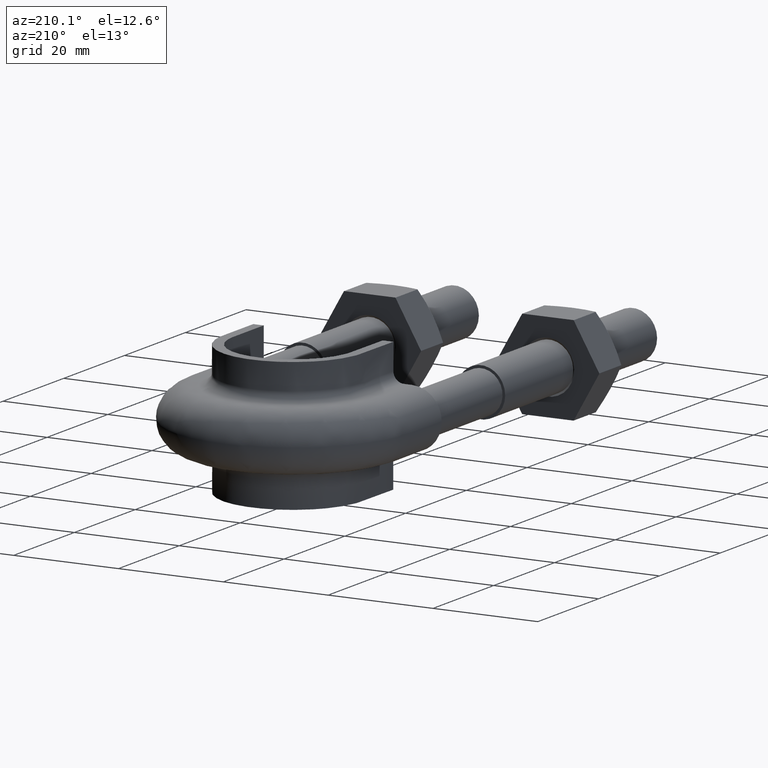
[diagram: clean part render]
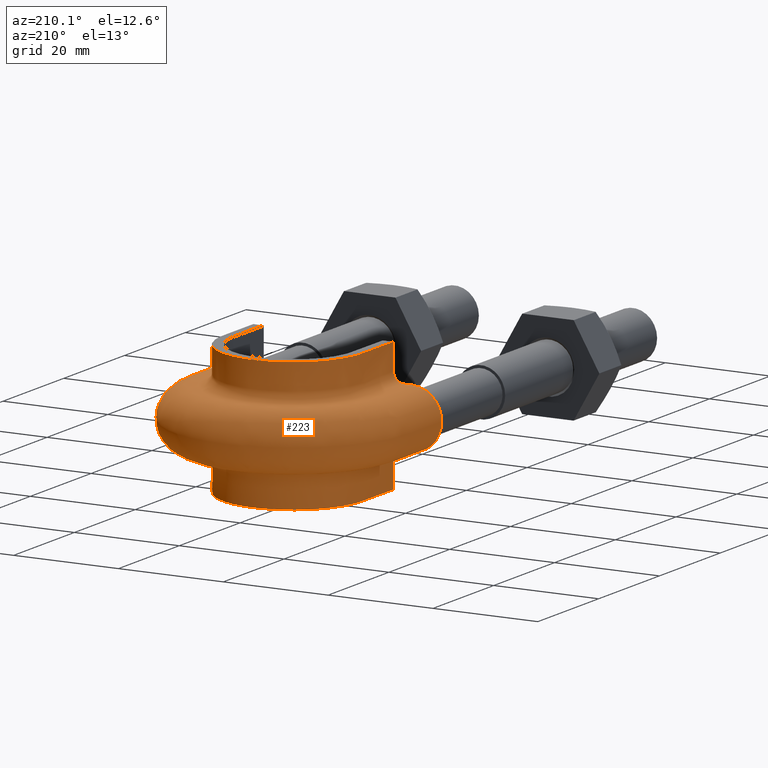
[diagram: same view with one face highlighted and labeled with its STEP entity id]
A machine part, auxiliary view. The second image highlights one B-rep face of the part: STEP entity #223.
In plain terms, the highlighted face is a freeform B-spline surface patch.
Its self-contained STEP definition (entity closure, byte-faithful):
#223 = ADVANCED_FACE( '', ( #306 ), #307, .F. );
#306 = FACE_OUTER_BOUND( '', #479, .T. );
#307 = B_SPLINE_SURFACE_WITH_KNOTS( '', 3, 3, ( ( #480, #481, #482, #483, #484, #485, #486, #487, #488, #489, #490, #491, #492, #493, #494, #495, #496, #497, #498 ), ( #499, #500, #501, #502, #503, #504, #505, #506, #507, #508, #509, #510, #511, #512, #513, #514, #515, #516, #517 ), ( #518, #519, #520, #521, #522, #523, #524, #525, #526, #527, #528, #529, #530, #531, #532, #533, #534, #535, #536 ), ( #537, #538, #539, #540, #541, #542, #543, #544, #545, #546, #547, #548, #549, #550, #551, #552, #553, #554, #555 ), ( #556, #557, #558, #559, #560, #561, #562, #563, #564, #565, #566, #567, #568, #569, #570, #571, #572, #573, #574 ), ( #575, #576, #577, #578, #579, #580, #581, #582, #583, #584, #585, #586, #587, #588, #589, #590, #591, #592, #593 ), ( #594, #595, #596, #597, #598, #599, #600, #601, #602, #603, #604, #605, #606, #607, #608, #609, #610, #611, #612 ), ( #613, #614, #615, #616, #617, #618, #619, #620, #621, #622, #623, #624, #625, #626, #627, #628, #629, #630, #631 ), ( #632, #633, #634, #635, #636, #637, #638, #639, #640, #641, #642, #643, #644, #645, #646, #647, #648, #649, #650 ), ( #651, #652, #653, #654, #655, #656, #657, #658, #659, #660, #661, #662, #663, #664, #665, #666, #667, #668, #669 ), ( #670, #671, #672, #673, #674, #675, #676, #677, #678, #679, #680, #681, #682, #683, #684, #685, #686, #687, #688 ), ( #689, #690, #691, #692, #693, #694, #695, #696, #697, #698, #699, #700, #701, #702, #703, #704, #705, #706, #707 ), ( #708, #709, #710, #711, #712, #713, #714, #715, #716, #717, #718, #719, #720, #721, #722, #723, #724, #725, #726 ), ( #727, #728, #729, #730, #731, #732, #733, #734, #735, #736, #737, #738, #739, #740, #741, #742, #743, #744, #745 ), ( #746, #747, #748, #749, #750, #751, #752, #753, #754, #755, #756, #757, #758, #759, #760, #761, #762, #763, #764 ), ( #765, #766, #767, #768, #769, #770, #771, #772, #773, #774, #775, #776, #777, #778, #779, #780, #781, #782, #783 ), ( #784, #785, #786, #787, #788, #789, #790, #791, #792, #793, #794, #795, #796, #797, #798, #799, #800, #801, #802 ), ( #803, #804, #805, #806, #807, #808, #809, #810, #811, #812, #813, #814, #815, #816, #817, #818, #819, #820, #821 ), ( #822, #823, #824, #825, #826, #827, #828, #829, #830, #831, #832, #833, #834, #835, #836, #837, #838, #839, #840 ), ( #841, #842, #843, #844, #845, #846, #847, #848, #849, #850, #851, #852, #853, #854, #855, #856, #857, #858, #859 ), ( #860, #861, #862, #863, #864, #865, #866, #867, #868, #869, #870, #871, #872, #873, #874, #875, #876, #877, #878 ), ( #879, #880, #881, #882, #883, #884, #885, #886, #887, #888, #889, #890, #891, #892, #893, #894, #895, #896, #897 ), ( #898, #899, #900, #901, #902, #903, #904, #905, #906, #907, #908, #909, #910, #911, #912, #913, #914, #915, #916 ), ( #917, #918, #919, #920, #921, #922, #923, #924, #925, #926, #927, #928, #929, #930, #931, #932, #933, #934, #935 ), ( #936, #937, #938, #939, #940, #941, #942, #943, #944, #945, #946, #947, #948, #949, #950, #951, #952, #953, #954 ), ( #955, #956, #957, #958, #959, #960, #961, #962, #963, #964, #965, #966, #967, #968, #969, #970, #971, #972, #973 ), ( #974, #975, #976, #977, #978, #979, #980, #981, #982, #983, #984, #985, #986, #987, #988, #989, #990, #991, #992 ), ( #993, #994, #995, #996, #997, #998, #999, #1000, #1001, #1002, #1003, #1004, #1005, #1006, #1007, #1008, #1009, #1010, #1011 ), ( #1012, #1013, #1014, #1015, #1016, #1017, #1018, #1019, #1020, #1021, #1022, #1023, #1024, #1025, #1026, #1027, #1028, #1029, #1030 ), ( #1031, #1032, #1033, #1034, #1035, #1036, #1037, #1038, #1039, #1040, #1041, #1042, #1043, #1044, #1045, #1046, #1047, #1048, #1049 ), ( #1050, #1051, #1052, #1053, #1054, #1055, #1056, #1057, #1058, #1059, #1060, #1061, #1062, #1063, #1064, #1065, #1066, #1067, #1068 ) ), .UNSPECIFIED., .F., .F., .F., ( 4, 3, 1, 1, 1, 3, 3, 1, 1, 1, 3, 3, 1, 1, 1, 3, 4 ), ( 4, 3, 1, 1, 1, 3, 1, 1, 1, 3, 4 ), ( 0.736842105263158, 0.789473684210526, 0.842105263157895, 0.894736842105263, 0.947368421052632, 1.00000000000000, 1.05263157894737, 1.10526315789474, 1.15789473684211, 1.21052631578947, 1.26315789473684, 1.31578947368421, 1.36842105263158, 1.42105263157895, 1.47368421052632, 1.52631578947368, 1.57894736842105 ), ( 0.000000000000000, 1.00000000000000, 1.50000000000000, 2.00000000000000, 3.00000000000000, 3.50000000000000, 4.00000000000000, 5.00000000000000, 5.50000000000000, 6.00000000000000, 7.00000000000000 ), .UNSPECIFIED. );
#479 = EDGE_LOOP( '', ( #1594, #1595, #1596, #1597 ) );
#480 = CARTESIAN_POINT( '', ( -13.3600000000000, 69.5400000000000, 12.5000000000000 ) );
#481 = CARTESIAN_POINT( '', ( -13.3600000000000, 73.9066666666667, 12.5000000000000 ) );
#482 = CARTESIAN_POINT( '', ( -13.3600000000000, 78.2733333333333, 12.5000000000000 ) );
#483 = CARTESIAN_POINT( '', ( -13.3600000000000, 82.6400000000000, 12.5000000000000 ) );
#484 = CARTESIAN_POINT( '', ( -13.3600000000000, 84.0243844002116, 12.5000000000000 ) );
#485 = CARTESIAN_POINT( '', ( -12.9030271653615, 86.8385025897862, 12.5000000000000 ) );
#486 = CARTESIAN_POINT( '', ( -10.3559347208131, 91.8876580329545, 12.5000000000000 ) );
#487 = CARTESIAN_POINT( '', ( -5.59795283105406, 95.3461150577033, 12.5000000000000 ) );
#488 = CARTESIAN_POINT( '', ( -1.39948820776350, 95.9945757498437, 12.5000000000000 ) );
#489 = CARTESIAN_POINT( '', ( 1.78270889054930E-014, 95.9945757498437, 12.5000000000000 ) );
#490 = CARTESIAN_POINT( '', ( 1.39948820776354, 95.9945757498437, 12.5000000000000 ) );
#491 = CARTESIAN_POINT( '', ( 5.59795283105410, 95.3461150577033, 12.5000000000000 ) );
#492 = CARTESIAN_POINT( '', ( 10.3559347208131, 91.8876580329545, 12.5000000000000 ) );
#493 = CARTESIAN_POINT( '', ( 12.9030271653616, 86.8385025897862, 12.5000000000000 ) );
#494 = CARTESIAN_POINT( '', ( 13.3600000000000, 84.0243844002116, 12.5000000000000 ) );
#495 = CARTESIAN_POINT( '', ( 13.3600000000000, 82.6400000000000, 12.5000000000000 ) );
#496 = CARTESIAN_POINT( '', ( 13.3600000000000, 78.2733333333333, 12.5000000000000 ) );
#497 = CARTESIAN_POINT( '', ( 13.3600000000000, 73.9066666666667, 12.5000000000000 ) );
#498 = CARTESIAN_POINT( '', ( 13.3600000000000, 69.5400000000000, 12.5000000000000 ) );
#499 = CARTESIAN_POINT( '', ( -13.3600000000000, 69.5399999999999, 10.8666666666666 ) );
#500 = CARTESIAN_POINT( '', ( -13.3600000000000, 73.9066666666666, 10.8666666666666 ) );
#501 = CARTESIAN_POINT( '', ( -13.3600000000000, 78.2733333333333, 10.8666666666666 ) );
#502 = CARTESIAN_POINT( '', ( -13.3600000000000, 82.6399999999999, 10.8666666666666 ) );
#503 = CARTESIAN_POINT( '', ( -13.3600000000000, 84.0243844002115, 10.8666666666666 ) );
#504 = CARTESIAN_POINT( '', ( -12.9030271653615, 86.8385025897861, 10.8666666666666 ) );
#505 = CARTESIAN_POINT( '', ( -10.3559347208130, 91.8876580329544, 10.8666666666666 ) );
#506 = CARTESIAN_POINT( '', ( -5.59795283105404, 95.3461150577032, 10.8666666666666 ) );
#507 = CARTESIAN_POINT( '', ( -1.39948820776349, 95.9945757498435, 10.8666666666666 ) );
#508 = CARTESIAN_POINT( '', ( 2.12965358574466E-014, 95.9945757498435, 10.8666666666666 ) );
#509 = CARTESIAN_POINT( '', ( 1.39948820776354, 95.9945757498435, 10.8666666666666 ) );
#510 = CARTESIAN_POINT( '', ( 5.59795283105408, 95.3461150577031, 10.8666666666666 ) );
#511 = CARTESIAN_POINT( '', ( 10.3559347208130, 91.8876580329544, 10.8666666666666 ) );
#512 = CARTESIAN_POINT( '', ( 12.9030271653615, 86.8385025897861, 10.8666666666666 ) );
#513 = CARTESIAN_POINT( '', ( 13.3600000000000, 84.0243844002115, 10.8666666666666 ) );
#514 = CARTESIAN_POINT( '', ( 13.3600000000000, 82.6399999999999, 10.8666666666666 ) );
#515 = CARTESIAN_POINT( '', ( 13.3600000000000, 78.2733333333333, 10.8666666666666 ) );
#516 = CARTESIAN_POINT( '', ( 13.3600000000000, 73.9066666666666, 10.8666666666666 ) );
#517 = CARTESIAN_POINT( '', ( 13.3600000000000, 69.5399999999999, 10.8666666666666 ) );
#518 = CARTESIAN_POINT( '', ( -13.3600000000001, 69.5400000000002, 9.23333333333334 ) );
#519 = CARTESIAN_POINT( '', ( -13.3600000000001, 73.9066666666668, 9.23333333333334 ) );
#520 = CARTESIAN_POINT( '', ( -13.3600000000001, 78.2733333333336, 9.23333333333334 ) );
#521 = CARTESIAN_POINT( '', ( -13.3600000000001, 82.6400000000002, 9.23333333333334 ) );
#522 = CARTESIAN_POINT( '', ( -13.3600000000001, 84.0243844002118, 9.23333333333334 ) );
#523 = CARTESIAN_POINT( '', ( -12.9030271653616, 86.8385025897865, 9.23333333333335 ) );
#524 = CARTESIAN_POINT( '', ( -10.3559347208131, 91.8876580329547, 9.23333333333335 ) );
#525 = CARTESIAN_POINT( '', ( -5.59795283105408, 95.3461150577035, 9.23333333333334 ) );
#526 = CARTESIAN_POINT( '', ( -1.39948820776350, 95.9945757498439, 9.23333333333334 ) );
#527 = CARTESIAN_POINT( '', ( 2.10796954229496E-014, 95.9945757498440, 9.23333333333334 ) );
#528 = CARTESIAN_POINT( '', ( 1.39948820776355, 95.9945757498439, 9.23333333333334 ) );
#529 = CARTESIAN_POINT( '', ( 5.59795283105412, 95.3461150577035, 9.23333333333334 ) );
#530 = CARTESIAN_POINT( '', ( 10.3559347208131, 91.8876580329547, 9.23333333333335 ) );
#531 = CARTESIAN_POINT( '', ( 12.9030271653616, 86.8385025897865, 9.23333333333334 ) );
#532 = CARTESIAN_POINT( '', ( 13.3600000000001, 84.0243844002118, 9.23333333333334 ) );
#533 = CARTESIAN_POINT( '', ( 13.3600000000001, 82.6400000000002, 9.23333333333334 ) );
#534 = CARTESIAN_POINT( '', ( 13.3600000000001, 78.2733333333335, 9.23333333333334 ) );
#535 = CARTESIAN_POINT( '', ( 13.3600000000001, 73.9066666666668, 9.23333333333334 ) );
#536 = CARTESIAN_POINT( '', ( 13.3600000000001, 69.5400000000002, 9.23333333333334 ) );
#537 = CARTESIAN_POINT( '', ( -13.3599999999999, 69.5399999999998, 7.59999999999992 ) );
#538 = CARTESIAN_POINT( '', ( -13.3599999999999, 73.9066666666665, 7.59999999999992 ) );
#539 = CARTESIAN_POINT( '', ( -13.3599999999999, 78.2733333333331, 7.59999999999992 ) );
#540 = CARTESIAN_POINT( '', ( -13.3599999999999, 82.6399999999997, 7.59999999999992 ) );
#541 = CARTESIAN_POINT( '', ( -13.3599999999999, 84.0243844002113, 7.59999999999992 ) );
#542 = CARTESIAN_POINT( '', ( -12.9030271653614, 86.8385025897859, 7.59999999999993 ) );
#543 = CARTESIAN_POINT( '', ( -10.3559347208130, 91.8876580329541, 7.59999999999992 ) );
#544 = CARTESIAN_POINT( '', ( -5.59795283105401, 95.3461150577029, 7.59999999999992 ) );
#545 = CARTESIAN_POINT( '', ( -1.39948820776349, 95.9945757498433, 7.59999999999992 ) );
#546 = CARTESIAN_POINT( '', ( 2.10796954229495E-014, 95.9945757498433, 7.59999999999992 ) );
#547 = CARTESIAN_POINT( '', ( 1.39948820776353, 95.9945757498433, 7.59999999999992 ) );
#548 = CARTESIAN_POINT( '', ( 5.59795283105405, 95.3461150577029, 7.59999999999992 ) );
#549 = CARTESIAN_POINT( '', ( 10.3559347208130, 91.8876580329541, 7.59999999999992 ) );
#550 = CARTESIAN_POINT( '', ( 12.9030271653615, 86.8385025897859, 7.59999999999992 ) );
#551 = CARTESIAN_POINT( '', ( 13.3599999999999, 84.0243844002113, 7.59999999999992 ) );
#552 = CARTESIAN_POINT( '', ( 13.3599999999999, 82.6399999999997, 7.59999999999992 ) );
#553 = CARTESIAN_POINT( '', ( 13.3599999999999, 78.2733333333331, 7.59999999999992 ) );
#554 = CARTESIAN_POINT( '', ( 13.3599999999999, 73.9066666666665, 7.59999999999992 ) );
#555 = CARTESIAN_POINT( '', ( 13.3599999999999, 69.5399999999998, 7.59999999999992 ) );
#556 = CARTESIAN_POINT( '', ( -13.3600000000000, 69.5400000000001, 7.33823584172333 ) );
#557 = CARTESIAN_POINT( '', ( -13.3600000000000, 73.9066666666668, 7.33823584172333 ) );
#558 = CARTESIAN_POINT( '', ( -13.3600000000000, 78.2733333333335, 7.33823584172334 ) );
#559 = CARTESIAN_POINT( '', ( -13.3600000000000, 82.6400000000002, 7.33823584172334 ) );
#560 = CARTESIAN_POINT( '', ( -13.3600000000000, 84.0243844002117, 7.33823584172334 ) );
#561 = CARTESIAN_POINT( '', ( -12.9030271653616, 86.8385025897864, 7.33823584172334 ) );
#562 = CARTESIAN_POINT( '', ( -10.3559347208131, 91.8876580329546, 7.33823584172333 ) );
#563 = CARTESIAN_POINT( '', ( -5.59795283105408, 95.3461150577035, 7.33823584172333 ) );
#564 = CARTESIAN_POINT( '', ( -1.39948820776350, 95.9945757498439, 7.33823584172334 ) );
#565 = CARTESIAN_POINT( '', ( 1.91281315124757E-014, 95.9945757498439, 7.33823584172333 ) );
#566 = CARTESIAN_POINT( '', ( 1.39948820776354, 95.9945757498439, 7.33823584172333 ) );
#567 = CARTESIAN_POINT( '', ( 5.59795283105411, 95.3461150577034, 7.33823584172334 ) );
#568 = CARTESIAN_POINT( '', ( 10.3559347208131, 91.8876580329546, 7.33823584172334 ) );
#569 = CARTESIAN_POINT( '', ( 12.9030271653616, 86.8385025897864, 7.33823584172333 ) );
#570 = CARTESIAN_POINT( '', ( 13.3600000000001, 84.0243844002118, 7.33823584172334 ) );
#571 = CARTESIAN_POINT( '', ( 13.3600000000001, 82.6400000000002, 7.33823584172334 ) );
#572 = CARTESIAN_POINT( '', ( 13.3600000000001, 78.2733333333335, 7.33823584172334 ) );
#573 = CARTESIAN_POINT( '', ( 13.3600000000001, 73.9066666666668, 7.33823584172333 ) );
#574 = CARTESIAN_POINT( '', ( 13.3600000000001, 69.5400000000001, 7.33823584172333 ) );
#575 = CARTESIAN_POINT( '', ( -13.4641362568359, 69.5399999999999, 6.81470752516997 ) );
#576 = CARTESIAN_POINT( '', ( -13.4641362568359, 73.9066666666666, 6.81470752516997 ) );
#577 = CARTESIAN_POINT( '', ( -13.4641362568359, 78.2733333333333, 6.81470752516997 ) );
#578 = CARTESIAN_POINT( '', ( -13.4641362568359, 82.6399999999999, 6.81470752516997 ) );
#579 = CARTESIAN_POINT( '', ( -13.4641362568359, 84.0356630405242, 6.81470752516997 ) );
#580 = CARTESIAN_POINT( '', ( -13.0037035828245, 86.8710411163186, 6.81470752516997 ) );
#581 = CARTESIAN_POINT( '', ( -10.4365958449970, 91.9598471044099, 6.81470752516997 ) );
#582 = CARTESIAN_POINT( '', ( -5.64159531004414, 95.4451545233495, 6.81470752516997 ) );
#583 = CARTESIAN_POINT( '', ( -1.41039882751102, 96.0986496644007, 6.81470752516997 ) );
#584 = CARTESIAN_POINT( '', ( 1.82735147321906E-014, 96.0986496644007, 6.81470752516997 ) );
#585 = CARTESIAN_POINT( '', ( 1.41039882751106, 96.0986496644007, 6.81470752516997 ) );
#586 = CARTESIAN_POINT( '', ( 5.64159531004418, 95.4451545233495, 6.81470752516997 ) );
#587 = CARTESIAN_POINT( '', ( 10.4365958449970, 91.9598471044100, 6.81470752516997 ) );
#588 = CARTESIAN_POINT( '', ( 13.0037035828246, 86.8710411163186, 6.81470752516997 ) );
#589 = CARTESIAN_POINT( '', ( 13.4641362568359, 84.0356630405242, 6.81470752516997 ) );
#590 = CARTESIAN_POINT( '', ( 13.4641362568359, 82.6399999999999, 6.81470752516997 ) );
#591 = CARTESIAN_POINT( '', ( 13.4641362568359, 78.2733333333333, 6.81470752516997 ) );
#592 = CARTESIAN_POINT( '', ( 13.4641362568359, 73.9066666666666, 6.81470752516997 ) );
#593 = CARTESIAN_POINT( '', ( 13.4641362568359, 69.5399999999999, 6.81470752516997 ) );
#594 = CARTESIAN_POINT( '', ( -13.9089687109389, 69.5400000000000, 6.14896871093885 ) );
#595 = CARTESIAN_POINT( '', ( -13.9089687109389, 73.9066666666667, 6.14896871093885 ) );
#596 = CARTESIAN_POINT( '', ( -13.9089687109389, 78.2733333333333, 6.14896871093885 ) );
#597 = CARTESIAN_POINT( '', ( -13.9089687109389, 82.6400000000000, 6.14896871093885 ) );
#598 = CARTESIAN_POINT( '', ( -13.9089687109389, 84.0838413158115, 6.14896871093885 ) );
#599 = CARTESIAN_POINT( '', ( -13.4337568535211, 87.0100339421616, 6.14896871093886 ) );
#600 = CARTESIAN_POINT( '', ( -10.7811510163818, 92.2682127283597, 6.14896871093885 ) );
#601 = CARTESIAN_POINT( '', ( -5.82802020779032, 95.8682153274838, 6.14896871093885 ) );
#602 = CARTESIAN_POINT( '', ( -1.45700505194757, 96.5432158148196, 6.14896871093885 ) );
#603 = CARTESIAN_POINT( '', ( 1.87616374544345E-014, 96.5432158148196, 6.14896871093885 ) );
#604 = CARTESIAN_POINT( '', ( 1.45700505194760, 96.5432158148196, 6.14896871093885 ) );
#605 = CARTESIAN_POINT( '', ( 5.82802020779036, 95.8682153274838, 6.14896871093885 ) );
#606 = CARTESIAN_POINT( '', ( 10.7811510163818, 92.2682127283597, 6.14896871093885 ) );
#607 = CARTESIAN_POINT( '', ( 13.4337568535212, 87.0100339421616, 6.14896871093885 ) );
#608 = CARTESIAN_POINT( '', ( 13.9089687109389, 84.0838413158115, 6.14896871093885 ) );
#609 = CARTESIAN_POINT( '', ( 13.9089687109389, 82.6400000000000, 6.14896871093885 ) );
#610 = CARTESIAN_POINT( '', ( 13.9089687109389, 78.2733333333333, 6.14896871093885 ) );
#611 = CARTESIAN_POINT( '', ( 13.9089687109389, 73.9066666666667, 6.14896871093885 ) );
#612 = CARTESIAN_POINT( '', ( 13.9089687109389, 69.5400000000000, 6.14896871093885 ) );
#613 = CARTESIAN_POINT( '', ( -14.5747075251700, 69.5400000000000, 5.70413625683587 ) );
#614 = CARTESIAN_POINT( '', ( -14.5747075251700, 73.9066666666667, 5.70413625683587 ) );
#615 = CARTESIAN_POINT( '', ( -14.5747075251700, 78.2733333333333, 5.70413625683588 ) );
#616 = CARTESIAN_POINT( '', ( -14.5747075251700, 82.6400000000000, 5.70413625683588 ) );
#617 = CARTESIAN_POINT( '', ( -14.5747075251700, 84.1559452002416, 5.70413625683588 ) );
#618 = CARTESIAN_POINT( '', ( -14.0773770566987, 87.2180514062872, 5.70413625683588 ) );
#619 = CARTESIAN_POINT( '', ( -11.2968142714324, 92.7297144981707, 5.70413625683588 ) );
#620 = CARTESIAN_POINT( '', ( -6.10702478406157, 96.5013705649089, 5.70413625683587 ) );
#621 = CARTESIAN_POINT( '', ( -1.52675619601538, 97.2085560774223, 5.70413625683587 ) );
#622 = CARTESIAN_POINT( '', ( 1.77589132732527E-014, 97.2085560774223, 5.70413625683588 ) );
#623 = CARTESIAN_POINT( '', ( 1.52675619601542, 97.2085560774223, 5.70413625683588 ) );
#624 = CARTESIAN_POINT( '', ( 6.10702478406161, 96.5013705649089, 5.70413625683588 ) );
#625 = CARTESIAN_POINT( '', ( 11.2968142714324, 92.7297144981707, 5.70413625683588 ) );
#626 = CARTESIAN_POINT( '', ( 14.0773770566988, 87.2180514062872, 5.70413625683588 ) );
#627 = CARTESIAN_POINT( '', ( 14.5747075251700, 84.1559452002416, 5.70413625683588 ) );
#628 = CARTESIAN_POINT( '', ( 14.5747075251700, 82.6400000000000, 5.70413625683588 ) );
#629 = CARTESIAN_POINT( '', ( 14.5747075251700, 78.2733333333333, 5.70413625683588 ) );
#630 = CARTESIAN_POINT( '', ( 14.5747075251700, 73.9066666666667, 5.70413625683587 ) );
#631 = CARTESIAN_POINT( '', ( 14.5747075251700, 69.5400000000000, 5.70413625683587 ) );
#632 = CARTESIAN_POINT( '', ( -15.0982358417233, 69.5400000000000, 5.59999999999997 ) );
#633 = CARTESIAN_POINT( '', ( -15.0982358417233, 73.9066666666667, 5.59999999999997 ) );
#634 = CARTESIAN_POINT( '', ( -15.0982358417233, 78.2733333333333, 5.59999999999997 ) );
#635 = CARTESIAN_POINT( '', ( -15.0982358417233, 82.6400000000000, 5.59999999999997 ) );
#636 = CARTESIAN_POINT( '', ( -15.0982358417233, 84.2126467541029, 5.59999999999997 ) );
#637 = CARTESIAN_POINT( '', ( -14.5835115861365, 87.3816336257394, 5.59999999999997 ) );
#638 = CARTESIAN_POINT( '', ( -11.7023251265218, 93.0926334679991, 5.59999999999997 ) );
#639 = CARTESIAN_POINT( '', ( -6.32643034222278, 96.9992755818320, 5.59999999999997 ) );
#640 = CARTESIAN_POINT( '', ( -1.58160758555568, 97.7317709781757, 5.59999999999997 ) );
#641 = CARTESIAN_POINT( '', ( 1.87987684576774E-014, 97.7317709781757, 5.59999999999997 ) );
#642 = CARTESIAN_POINT( '', ( 1.58160758555572, 97.7317709781757, 5.59999999999997 ) );
#643 = CARTESIAN_POINT( '', ( 6.32643034222281, 96.9992755818320, 5.59999999999997 ) );
#644 = CARTESIAN_POINT( '', ( 11.7023251265218, 93.0926334679991, 5.59999999999997 ) );
#645 = CARTESIAN_POINT( '', ( 14.5835115861365, 87.3816336257394, 5.59999999999997 ) );
#646 = CARTESIAN_POINT( '', ( 15.0982358417233, 84.2126467541029, 5.59999999999997 ) );
#647 = CARTESIAN_POINT( '', ( 15.0982358417233, 82.6400000000000, 5.59999999999997 ) );
#648 = CARTESIAN_POINT( '', ( 15.0982358417233, 78.2733333333333, 5.59999999999997 ) );
#649 = CARTESIAN_POINT( '', ( 15.0982358417233, 73.9066666666667, 5.59999999999997 ) );
#650 = CARTESIAN_POINT( '', ( 15.0982358417233, 69.5400000000000, 5.59999999999997 ) );
#651 = CARTESIAN_POINT( '', ( -15.3600000000000, 69.5400000000000, 5.59999999999999 ) );
#652 = CARTESIAN_POINT( '', ( -15.3600000000000, 73.9066666666667, 5.59999999999999 ) );
#653 = CARTESIAN_POINT( '', ( -15.3600000000000, 78.2733333333333, 5.59999999999999 ) );
#654 = CARTESIAN_POINT( '', ( -15.3600000000000, 82.6400000000000, 5.59999999999999 ) );
#655 = CARTESIAN_POINT( '', ( -15.3600000000000, 84.2409975310335, 5.59999999999999 ) );
#656 = CARTESIAN_POINT( '', ( -14.8365788508553, 87.4634247354655, 5.59999999999999 ) );
#657 = CARTESIAN_POINT( '', ( -11.9050805540665, 93.2740929529133, 5.59999999999999 ) );
#658 = CARTESIAN_POINT( '', ( -6.43613312130337, 97.2482280902935, 5.59999999999999 ) );
#659 = CARTESIAN_POINT( '', ( -1.60903328032583, 97.9933784285523, 5.59999999999999 ) );
#660 = CARTESIAN_POINT( '', ( 1.81802837687800E-014, 97.9933784285523, 5.59999999999999 ) );
#661 = CARTESIAN_POINT( '', ( 1.60903328032586, 97.9933784285523, 5.59999999999999 ) );
#662 = CARTESIAN_POINT( '', ( 6.43613312130340, 97.2482280902935, 5.59999999999999 ) );
#663 = CARTESIAN_POINT( '', ( 11.9050805540665, 93.2740929529133, 5.59999999999999 ) );
#664 = CARTESIAN_POINT( '', ( 14.8365788508553, 87.4634247354655, 5.59999999999999 ) );
#665 = CARTESIAN_POINT( '', ( 15.3600000000000, 84.2409975310335, 5.59999999999999 ) );
#666 = CARTESIAN_POINT( '', ( 15.3600000000000, 82.6400000000000, 5.59999999999999 ) );
#667 = CARTESIAN_POINT( '', ( 15.3600000000000, 78.2733333333333, 5.59999999999999 ) );
#668 = CARTESIAN_POINT( '', ( 15.3600000000000, 73.9066666666667, 5.59999999999999 ) );
#669 = CARTESIAN_POINT( '', ( 15.3600000000000, 69.5400000000000, 5.59999999999999 ) );
#670 = CARTESIAN_POINT( '', ( -15.9066666666666, 69.5400000000000, 5.59999999999999 ) );
#671 = CARTESIAN_POINT( '', ( -15.9066666666666, 73.9066666666667, 5.59999999999999 ) );
#672 = CARTESIAN_POINT( '', ( -15.9066666666666, 78.2733333333333, 5.59999999999999 ) );
#673 = CARTESIAN_POINT( '', ( -15.9066666666666, 82.6400000000000, 5.59999999999999 ) );
#674 = CARTESIAN_POINT( '', ( -15.9066666666666, 84.3002051201248, 5.59999999999999 ) );
#675 = CARTESIAN_POINT( '', ( -15.3650829782236, 87.6342367886178, 5.59999999999999 ) );
#676 = CARTESIAN_POINT( '', ( -12.3285137484891, 93.6530518310353, 5.59999999999999 ) );
#677 = CARTESIAN_POINT( '', ( -6.66523573397152, 97.7681389858682, 5.59999999999999 ) );
#678 = CARTESIAN_POINT( '', ( -1.66630893349287, 98.5397178273994, 5.59999999999999 ) );
#679 = CARTESIAN_POINT( '', ( 1.79219281869515E-014, 98.5397178273994, 5.59999999999999 ) );
#680 = CARTESIAN_POINT( '', ( 1.66630893349290, 98.5397178273994, 5.59999999999999 ) );
#681 = CARTESIAN_POINT( '', ( 6.66523573397155, 97.7681389858682, 5.59999999999999 ) );
#682 = CARTESIAN_POINT( '', ( 12.3285137484891, 93.6530518310353, 5.59999999999999 ) );
#683 = CARTESIAN_POINT( '', ( 15.3650829782236, 87.6342367886178, 5.59999999999999 ) );
#684 = CARTESIAN_POINT( '', ( 15.9066666666667, 84.3002051201248, 5.59999999999999 ) );
#685 = CARTESIAN_POINT( '', ( 15.9066666666667, 82.6400000000000, 5.59999999999999 ) );
#686 = CARTESIAN_POINT( '', ( 15.9066666666667, 78.2733333333333, 5.59999999999999 ) );
#687 = CARTESIAN_POINT( '', ( 15.9066666666667, 73.9066666666667, 5.59999999999999 ) );
#688 = CARTESIAN_POINT( '', ( 15.9066666666667, 69.5400000000000, 5.59999999999999 ) );
#689 = CARTESIAN_POINT( '', ( -16.4533333333333, 69.5400000000000, 5.59999999999998 ) );
#690 = CARTESIAN_POINT( '', ( -16.4533333333333, 73.9066666666666, 5.59999999999998 ) );
#691 = CARTESIAN_POINT( '', ( -16.4533333333333, 78.2733333333333, 5.59999999999999 ) );
#692 = CARTESIAN_POINT( '', ( -16.4533333333333, 82.6400000000000, 5.59999999999999 ) );
#693 = CARTESIAN_POINT( '', ( -16.4533333333333, 84.3594127092162, 5.59999999999999 ) );
#694 = CARTESIAN_POINT( '', ( -15.8935871055919, 87.8050488417702, 5.59999999999999 ) );
#695 = CARTESIAN_POINT( '', ( -12.7519469429117, 94.0320107091574, 5.59999999999998 ) );
#696 = CARTESIAN_POINT( '', ( -6.89433834663967, 98.2880498814429, 5.59999999999998 ) );
#697 = CARTESIAN_POINT( '', ( -1.72358458665990, 99.0860572262464, 5.59999999999999 ) );
#698 = CARTESIAN_POINT( '', ( 1.89646152121056E-014, 99.0860572262464, 5.59999999999999 ) );
#699 = CARTESIAN_POINT( '', ( 1.72358458665994, 99.0860572262464, 5.59999999999999 ) );
#700 = CARTESIAN_POINT( '', ( 6.89433834663971, 98.2880498814429, 5.59999999999999 ) );
#701 = CARTESIAN_POINT( '', ( 12.7519469429117, 94.0320107091574, 5.59999999999999 ) );
#702 = CARTESIAN_POINT( '', ( 15.8935871055920, 87.8050488417701, 5.59999999999999 ) );
#703 = CARTESIAN_POINT( '', ( 16.4533333333333, 84.3594127092162, 5.59999999999999 ) );
#704 = CARTESIAN_POINT( '', ( 16.4533333333333, 82.6400000000000, 5.59999999999999 ) );
#705 = CARTESIAN_POINT( '', ( 16.4533333333333, 78.2733333333333, 5.59999999999999 ) );
#706 = CARTESIAN_POINT( '', ( 16.4533333333333, 73.9066666666667, 5.59999999999998 ) );
#707 = CARTESIAN_POINT( '', ( 16.4533333333333, 69.5400000000000, 5.59999999999998 ) );
#708 = CARTESIAN_POINT( '', ( -17.0000000000000, 69.5400000000000, 5.59999999999999 ) );
#709 = CARTESIAN_POINT( '', ( -17.0000000000000, 73.9066666666667, 5.59999999999999 ) );
#710 = CARTESIAN_POINT( '', ( -17.0000000000000, 78.2733333333333, 5.59999999999999 ) );
#711 = CARTESIAN_POINT( '', ( -17.0000000000000, 82.6400000000000, 5.59999999999999 ) );
#712 = CARTESIAN_POINT( '', ( -17.0000000000000, 84.4186202983075, 5.59999999999999 ) );
#713 = CARTESIAN_POINT( '', ( -16.4220912329602, 87.9758608949225, 5.59999999999999 ) );
#714 = CARTESIAN_POINT( '', ( -13.1753801373343, 94.4109695872795, 5.59999999999999 ) );
#715 = CARTESIAN_POINT( '', ( -7.12344095930783, 98.8079607770176, 5.59999999999999 ) );
#716 = CARTESIAN_POINT( '', ( -1.78086023982694, 99.6323966250935, 5.59999999999999 ) );
#717 = CARTESIAN_POINT( '', ( 1.83809989785314E-014, 99.6323966250935, 5.59999999999999 ) );
#718 = CARTESIAN_POINT( '', ( 1.78086023982698, 99.6323966250935, 5.59999999999999 ) );
#719 = CARTESIAN_POINT( '', ( 7.12344095930787, 98.8079607770176, 5.59999999999999 ) );
#720 = CARTESIAN_POINT( '', ( 13.1753801373344, 94.4109695872796, 5.59999999999999 ) );
#721 = CARTESIAN_POINT( '', ( 16.4220912329603, 87.9758608949225, 5.59999999999999 ) );
#722 = CARTESIAN_POINT( '', ( 17.0000000000000, 84.4186202983075, 5.59999999999999 ) );
#723 = CARTESIAN_POINT( '', ( 17.0000000000000, 82.6400000000000, 5.59999999999999 ) );
#724 = CARTESIAN_POINT( '', ( 17.0000000000000, 78.2733333333333, 5.59999999999999 ) );
#725 = CARTESIAN_POINT( '', ( 17.0000000000000, 73.9066666666667, 5.59999999999999 ) );
#726 = CARTESIAN_POINT( '', ( 17.0000000000000, 69.5400000000000, 5.59999999999999 ) );
#727 = CARTESIAN_POINT( '', ( -18.4627416997969, 69.5400000000000, 5.59999999999999 ) );
#728 = CARTESIAN_POINT( '', ( -18.4627416997969, 73.9066666666667, 5.59999999999999 ) );
#729 = CARTESIAN_POINT( '', ( -18.4627416997969, 78.2733333333333, 5.59999999999999 ) );
#730 = CARTESIAN_POINT( '', ( -18.4627416997969, 82.6400000000000, 5.59999999999999 ) );
#731 = CARTESIAN_POINT( '', ( -18.4627416997969, 84.5770448278959, 5.59999999999999 ) );
#732 = CARTESIAN_POINT( '', ( -17.8362345725025, 88.4329107357284, 5.59999999999999 ) );
#733 = CARTESIAN_POINT( '', ( -14.3083802420176, 95.4249676730188, 5.59999999999999 ) );
#734 = CARTESIAN_POINT( '', ( -7.73646159055563, 100.199110802266, 5.59999999999998 ) );
#735 = CARTESIAN_POINT( '', ( -1.93411539763889, 101.094262639000, 5.59999999999998 ) );
#736 = CARTESIAN_POINT( '', ( 1.95358019746751E-014, 101.094262639000, 5.59999999999998 ) );
#737 = CARTESIAN_POINT( '', ( 1.93411539763893, 101.094262639000, 5.59999999999998 ) );
#738 = CARTESIAN_POINT( '', ( 7.73646159055567, 100.199110802266, 5.59999999999999 ) );
#739 = CARTESIAN_POINT( '', ( 14.3083802420176, 95.4249676730188, 5.59999999999999 ) );
#740 = CARTESIAN_POINT( '', ( 17.8362345725025, 88.4329107357284, 5.59999999999998 ) );
#741 = CARTESIAN_POINT( '', ( 18.4627416997970, 84.5770448278959, 5.59999999999999 ) );
#742 = CARTESIAN_POINT( '', ( 18.4627416997970, 82.6400000000000, 5.59999999999999 ) );
#743 = CARTESIAN_POINT( '', ( 18.4627416997970, 78.2733333333333, 5.59999999999999 ) );
#744 = CARTESIAN_POINT( '', ( 18.4627416997970, 73.9066666666667, 5.59999999999999 ) );
#745 = CARTESIAN_POINT( '', ( 18.4627416997970, 69.5400000000000, 5.59999999999999 ) );
#746 = CARTESIAN_POINT( '', ( -21.3882250993909, 69.5400000000000, 4.38822509939083 ) );
#747 = CARTESIAN_POINT( '', ( -21.3882250993909, 73.9066666666667, 4.38822509939083 ) );
#748 = CARTESIAN_POINT( '', ( -21.3882250993909, 78.2733333333333, 4.38822509939084 ) );
#749 = CARTESIAN_POINT( '', ( -21.3882250993909, 82.6400000000000, 4.38822509939084 ) );
#750 = CARTESIAN_POINT( '', ( -21.3882250993909, 84.8938938870727, 4.38822509939084 ) );
#751 = CARTESIAN_POINT( '', ( -20.6645212515869, 89.3470104173401, 4.38822509939084 ) );
#752 = CARTESIAN_POINT( '', ( -16.5743804513841, 97.4529638444972, 4.38822509939084 ) );
#753 = CARTESIAN_POINT( '', ( -8.96250285305123, 102.981410852763, 4.38822509939084 ) );
#754 = CARTESIAN_POINT( '', ( -2.24062571326279, 104.017994666813, 4.38822509939084 ) );
#755 = CARTESIAN_POINT( '', ( 2.07612057944769E-014, 104.017994666813, 4.38822509939084 ) );
#756 = CARTESIAN_POINT( '', ( 2.24062571326283, 104.017994666813, 4.38822509939084 ) );
#757 = CARTESIAN_POINT( '', ( 8.96250285305127, 102.981410852763, 4.38822509939084 ) );
#758 = CARTESIAN_POINT( '', ( 16.5743804513842, 97.4529638444972, 4.38822509939084 ) );
#759 = CARTESIAN_POINT( '', ( 20.6645212515870, 89.3470104173400, 4.38822509939084 ) );
#760 = CARTESIAN_POINT( '', ( 21.3882250993909, 84.8938938870727, 4.38822509939084 ) );
#761 = CARTESIAN_POINT( '', ( 21.3882250993909, 82.6400000000000, 4.38822509939084 ) );
#762 = CARTESIAN_POINT( '', ( 21.3882250993909, 78.2733333333333, 4.38822509939084 ) );
#763 = CARTESIAN_POINT( '', ( 21.3882250993909, 73.9066666666667, 4.38822509939083 ) );
#764 = CARTESIAN_POINT( '', ( 21.3882250993909, 69.5400000000000, 4.38822509939083 ) );
#765 = CARTESIAN_POINT( '', ( -23.2058874503045, 69.5400000000000, -6.52726460452291E-015 ) );
#766 = CARTESIAN_POINT( '', ( -23.2058874503045, 73.9066666666667, -6.52726460452291E-015 ) );
#767 = CARTESIAN_POINT( '', ( -23.2058874503045, 78.2733333333333, -7.05650227515990E-015 ) );
#768 = CARTESIAN_POINT( '', ( -23.2058874503046, 82.6400000000000, -7.05650227515990E-015 ) );
#769 = CARTESIAN_POINT( '', ( -23.2058874503046, 85.0907586533770, -7.05650227515990E-015 ) );
#770 = CARTESIAN_POINT( '', ( -22.4217933027208, 89.9149591455668, -7.58573994579689E-015 ) );
#771 = CARTESIAN_POINT( '', ( -17.9822924799740, 98.7129991224978, -7.76215250267589E-015 ) );
#772 = CARTESIAN_POINT( '', ( -9.72426723148329, 104.710110476024, -7.76215250267589E-015 ) );
#773 = CARTESIAN_POINT( '', ( -2.43106680787081, 105.834568854810, -6.88008971828090E-015 ) );
#774 = CARTESIAN_POINT( '', ( 2.18510263617464E-014, 105.834568854810, -6.52726460452291E-015 ) );
#775 = CARTESIAN_POINT( '', ( 2.43106680787085, 105.834568854810, -7.40932738891789E-015 ) );
#776 = CARTESIAN_POINT( '', ( 9.72426723148333, 104.710110476024, -7.05650227515990E-015 ) );
#777 = CARTESIAN_POINT( '', ( 17.9822924799740, 98.7129991224978, -7.58573994579689E-015 ) );
#778 = CARTESIAN_POINT( '', ( 22.4217933027209, 89.9149591455668, -7.05650227515990E-015 ) );
#779 = CARTESIAN_POINT( '', ( 23.2058874503046, 85.0907586533770, -7.05650227515990E-015 ) );
#780 = CARTESIAN_POINT( '', ( 23.2058874503046, 82.6400000000000, -7.05650227515990E-015 ) );
#781 = CARTESIAN_POINT( '', ( 23.2058874503046, 78.2733333333333, -7.05650227515990E-015 ) );
#782 = CARTESIAN_POINT( '', ( 23.2058874503046, 73.9066666666667, -6.52726460452291E-015 ) );
#783 = CARTESIAN_POINT( '', ( 23.2058874503046, 69.5400000000000, -6.52726460452291E-015 ) );
#784 = CARTESIAN_POINT( '', ( -21.3882250993909, 69.5400000000000, -4.38822509939087 ) );
#785 = CARTESIAN_POINT( '', ( -21.3882250993908, 73.9066666666667, -4.38822509939087 ) );
#786 = CARTESIAN_POINT( '', ( -21.3882250993908, 78.2733333333334, -4.38822509939087 ) );
#787 = CARTESIAN_POINT( '', ( -21.3882250993909, 82.6400000000000, -4.38822509939087 ) );
#788 = CARTESIAN_POINT( '', ( -21.3882250993909, 84.8938938870728, -4.38822509939087 ) );
#789 = CARTESIAN_POINT( '', ( -20.6645212515869, 89.3470104173401, -4.38822509939087 ) );
#790 = CARTESIAN_POINT( '', ( -16.5743804513841, 97.4529638444972, -4.38822509939086 ) );
#791 = CARTESIAN_POINT( '', ( -8.96250285305123, 102.981410852763, -4.38822509939086 ) );
#792 = CARTESIAN_POINT( '', ( -2.24062571326279, 104.017994666813, -4.38822509939086 ) );
#793 = CARTESIAN_POINT( '', ( 1.94601631874943E-014, 104.017994666813, -4.38822509939087 ) );
#794 = CARTESIAN_POINT( '', ( 2.24062571326283, 104.017994666813, -4.38822509939086 ) );
#795 = CARTESIAN_POINT( '', ( 8.96250285305127, 102.981410852763, -4.38822509939087 ) );
#796 = CARTESIAN_POINT( '', ( 16.5743804513842, 97.4529638444972, -4.38822509939087 ) );
#797 = CARTESIAN_POINT( '', ( 20.6645212515870, 89.3470104173401, -4.38822509939086 ) );
#798 = CARTESIAN_POINT( '', ( 21.3882250993909, 84.8938938870728, -4.38822509939087 ) );
#799 = CARTESIAN_POINT( '', ( 21.3882250993909, 82.6400000000000, -4.38822509939087 ) );
#800 = CARTESIAN_POINT( '', ( 21.3882250993909, 78.2733333333333, -4.38822509939087 ) );
#801 = CARTESIAN_POINT( '', ( 21.3882250993909, 73.9066666666667, -4.38822509939087 ) );
#802 = CARTESIAN_POINT( '', ( 21.3882250993909, 69.5400000000000, -4.38822509939087 ) );
#803 = CARTESIAN_POINT( '', ( -18.4627416997969, 69.5400000000000, -5.60000000000000 ) );
#804 = CARTESIAN_POINT( '', ( -18.4627416997969, 73.9066666666667, -5.60000000000000 ) );
#805 = CARTESIAN_POINT( '', ( -18.4627416997969, 78.2733333333333, -5.60000000000001 ) );
#806 = CARTESIAN_POINT( '', ( -18.4627416997969, 82.6400000000000, -5.60000000000001 ) );
#807 = CARTESIAN_POINT( '', ( -18.4627416997969, 84.5770448278959, -5.60000000000001 ) );
#808 = CARTESIAN_POINT( '', ( -17.8362345725025, 88.4329107357283, -5.60000000000001 ) );
#809 = CARTESIAN_POINT( '', ( -14.3083802420176, 95.4249676730187, -5.60000000000000 ) );
#810 = CARTESIAN_POINT( '', ( -7.73646159055563, 100.199110802266, -5.60000000000000 ) );
#811 = CARTESIAN_POINT( '', ( -1.93411539763889, 101.094262639000, -5.60000000000000 ) );
#812 = CARTESIAN_POINT( '', ( 1.97526424091722E-014, 101.094262639000, -5.60000000000000 ) );
#813 = CARTESIAN_POINT( '', ( 1.93411539763893, 101.094262639000, -5.60000000000000 ) );
#814 = CARTESIAN_POINT( '', ( 7.73646159055567, 100.199110802266, -5.60000000000001 ) );
#815 = CARTESIAN_POINT( '', ( 14.3083802420176, 95.4249676730188, -5.60000000000000 ) );
#816 = CARTESIAN_POINT( '', ( 17.8362345725025, 88.4329107357283, -5.60000000000000 ) );
#817 = CARTESIAN_POINT( '', ( 18.4627416997970, 84.5770448278959, -5.60000000000001 ) );
#818 = CARTESIAN_POINT( '', ( 18.4627416997970, 82.6400000000000, -5.60000000000001 ) );
#819 = CARTESIAN_POINT( '', ( 18.4627416997970, 78.2733333333333, -5.60000000000001 ) );
#820 = CARTESIAN_POINT( '', ( 18.4627416997970, 73.9066666666667, -5.60000000000000 ) );
#821 = CARTESIAN_POINT( '', ( 18.4627416997970, 69.5400000000000, -5.60000000000000 ) );
#822 = CARTESIAN_POINT( '', ( -17.0000000000000, 69.5400000000000, -5.60000000000001 ) );
#823 = CARTESIAN_POINT( '', ( -17.0000000000000, 73.9066666666667, -5.60000000000001 ) );
#824 = CARTESIAN_POINT( '', ( -17.0000000000000, 78.2733333333333, -5.60000000000001 ) );
#825 = CARTESIAN_POINT( '', ( -17.0000000000000, 82.6400000000000, -5.60000000000001 ) );
#826 = CARTESIAN_POINT( '', ( -17.0000000000000, 84.4186202983075, -5.60000000000001 ) );
#827 = CARTESIAN_POINT( '', ( -16.4220912329602, 87.9758608949225, -5.60000000000001 ) );
#828 = CARTESIAN_POINT( '', ( -13.1753801373343, 94.4109695872795, -5.60000000000001 ) );
#829 = CARTESIAN_POINT( '', ( -7.12344095930783, 98.8079607770176, -5.60000000000001 ) );
#830 = CARTESIAN_POINT( '', ( -1.78086023982694, 99.6323966250935, -5.60000000000001 ) );
#831 = CARTESIAN_POINT( '', ( 1.87062596302771E-014, 99.6323966250935, -5.60000000000001 ) );
#832 = CARTESIAN_POINT( '', ( 1.78086023982698, 99.6323966250935, -5.60000000000001 ) );
#833 = CARTESIAN_POINT( '', ( 7.12344095930787, 98.8079607770176, -5.60000000000001 ) );
#834 = CARTESIAN_POINT( '', ( 13.1753801373344, 94.4109695872796, -5.60000000000001 ) );
#835 = CARTESIAN_POINT( '', ( 16.4220912329603, 87.9758608949225, -5.60000000000001 ) );
#836 = CARTESIAN_POINT( '', ( 17.0000000000000, 84.4186202983075, -5.60000000000001 ) );
#837 = CARTESIAN_POINT( '', ( 17.0000000000000, 82.6400000000000, -5.60000000000001 ) );
#838 = CARTESIAN_POINT( '', ( 17.0000000000000, 78.2733333333333, -5.60000000000001 ) );
#839 = CARTESIAN_POINT( '', ( 17.0000000000000, 73.9066666666667, -5.60000000000001 ) );
#840 = CARTESIAN_POINT( '', ( 17.0000000000000, 69.5400000000000, -5.60000000000001 ) );
#841 = CARTESIAN_POINT( '', ( -16.4533333333333, 69.5400000000000, -5.60000000000001 ) );
#842 = CARTESIAN_POINT( '', ( -16.4533333333333, 73.9066666666667, -5.60000000000001 ) );
#843 = CARTESIAN_POINT( '', ( -16.4533333333333, 78.2733333333333, -5.60000000000001 ) );
#844 = CARTESIAN_POINT( '', ( -16.4533333333333, 82.6400000000000, -5.60000000000001 ) );
#845 = CARTESIAN_POINT( '', ( -16.4533333333333, 84.3594127092162, -5.60000000000001 ) );
#846 = CARTESIAN_POINT( '', ( -15.8935871055919, 87.8050488417702, -5.60000000000001 ) );
#847 = CARTESIAN_POINT( '', ( -12.7519469429117, 94.0320107091575, -5.60000000000001 ) );
#848 = CARTESIAN_POINT( '', ( -6.89433834663968, 98.2880498814430, -5.60000000000001 ) );
#849 = CARTESIAN_POINT( '', ( -1.72358458665991, 99.0860572262465, -5.60000000000001 ) );
#850 = CARTESIAN_POINT( '', ( 1.45193863049150E-014, 99.0860572262465, -5.60000000000001 ) );
#851 = CARTESIAN_POINT( '', ( 1.72358458665994, 99.0860572262465, -5.60000000000001 ) );
#852 = CARTESIAN_POINT( '', ( 6.89433834663972, 98.2880498814429, -5.60000000000001 ) );
#853 = CARTESIAN_POINT( '', ( 12.7519469429118, 94.0320107091575, -5.60000000000001 ) );
#854 = CARTESIAN_POINT( '', ( 15.8935871055920, 87.8050488417702, -5.60000000000001 ) );
#855 = CARTESIAN_POINT( '', ( 16.4533333333334, 84.3594127092162, -5.60000000000001 ) );
#856 = CARTESIAN_POINT( '', ( 16.4533333333334, 82.6400000000000, -5.60000000000001 ) );
#857 = CARTESIAN_POINT( '', ( 16.4533333333334, 78.2733333333333, -5.60000000000001 ) );
#858 = CARTESIAN_POINT( '', ( 16.4533333333334, 73.9066666666667, -5.60000000000001 ) );
#859 = CARTESIAN_POINT( '', ( 16.4533333333334, 69.5400000000000, -5.60000000000001 ) );
#860 = CARTESIAN_POINT( '', ( -15.9066666666667, 69.5400000000000, -5.60000000000000 ) );
#861 = CARTESIAN_POINT( '', ( -15.9066666666666, 73.9066666666667, -5.60000000000000 ) );
#862 = CARTESIAN_POINT( '', ( -15.9066666666666, 78.2733333333333, -5.60000000000001 ) );
#863 = CARTESIAN_POINT( '', ( -15.9066666666667, 82.6400000000000, -5.60000000000001 ) );
#864 = CARTESIAN_POINT( '', ( -15.9066666666667, 84.3002051201248, -5.60000000000001 ) );
#865 = CARTESIAN_POINT( '', ( -15.3650829782236, 87.6342367886178, -5.60000000000002 ) );
#866 = CARTESIAN_POINT( '', ( -12.3285137484891, 93.6530518310354, -5.60000000000001 ) );
#867 = CARTESIAN_POINT( '', ( -6.66523573397153, 97.7681389858683, -5.60000000000000 ) );
#868 = CARTESIAN_POINT( '', ( -1.66630893349287, 98.5397178273994, -5.60000000000001 ) );
#869 = CARTESIAN_POINT( '', ( 1.55366834074834E-014, 98.5397178273994, -5.60000000000001 ) );
#870 = CARTESIAN_POINT( '', ( 1.66630893349290, 98.5397178273994, -5.60000000000001 ) );
#871 = CARTESIAN_POINT( '', ( 6.66523573397156, 97.7681389858682, -5.60000000000001 ) );
#872 = CARTESIAN_POINT( '', ( 12.3285137484891, 93.6530518310354, -5.60000000000001 ) );
#873 = CARTESIAN_POINT( '', ( 15.3650829782236, 87.6342367886178, -5.60000000000001 ) );
#874 = CARTESIAN_POINT( '', ( 15.9066666666667, 84.3002051201248, -5.60000000000001 ) );
#875 = CARTESIAN_POINT( '', ( 15.9066666666667, 82.6400000000000, -5.60000000000001 ) );
#876 = CARTESIAN_POINT( '', ( 15.9066666666667, 78.2733333333333, -5.60000000000001 ) );
#877 = CARTESIAN_POINT( '', ( 15.9066666666667, 73.9066666666667, -5.60000000000000 ) );
#878 = CARTESIAN_POINT( '', ( 15.9066666666667, 69.5400000000000, -5.60000000000000 ) );
#879 = CARTESIAN_POINT( '', ( -15.3600000000000, 69.5400000000000, -5.60000000000001 ) );
#880 = CARTESIAN_POINT( '', ( -15.3600000000000, 73.9066666666667, -5.60000000000001 ) );
#881 = CARTESIAN_POINT( '', ( -15.3600000000000, 78.2733333333333, -5.60000000000001 ) );
#882 = CARTESIAN_POINT( '', ( -15.3600000000000, 82.6400000000000, -5.60000000000001 ) );
#883 = CARTESIAN_POINT( '', ( -15.3600000000000, 84.2409975310335, -5.60000000000001 ) );
#884 = CARTESIAN_POINT( '', ( -14.8365788508553, 87.4634247354655, -5.60000000000001 ) );
#885 = CARTESIAN_POINT( '', ( -11.9050805540665, 93.2740929529133, -5.60000000000001 ) );
#886 = CARTESIAN_POINT( '', ( -6.43613312130338, 97.2482280902936, -5.60000000000001 ) );
#887 = CARTESIAN_POINT( '', ( -1.60903328032583, 97.9933784285523, -5.60000000000001 ) );
#888 = CARTESIAN_POINT( '', ( 1.47108368168264E-014, 97.9933784285523, -5.60000000000001 ) );
#889 = CARTESIAN_POINT( '', ( 1.60903328032586, 97.9933784285523, -5.60000000000001 ) );
#890 = CARTESIAN_POINT( '', ( 6.43613312130341, 97.2482280902936, -5.60000000000001 ) );
#891 = CARTESIAN_POINT( '', ( 11.9050805540665, 93.2740929529133, -5.60000000000001 ) );
#892 = CARTESIAN_POINT( '', ( 14.8365788508553, 87.4634247354655, -5.60000000000001 ) );
#893 = CARTESIAN_POINT( '', ( 15.3600000000000, 84.2409975310335, -5.60000000000001 ) );
#894 = CARTESIAN_POINT( '', ( 15.3600000000000, 82.6400000000000, -5.60000000000001 ) );
#895 = CARTESIAN_POINT( '', ( 15.3600000000000, 78.2733333333333, -5.60000000000001 ) );
#896 = CARTESIAN_POINT( '', ( 15.3600000000000, 73.9066666666667, -5.60000000000001 ) );
#897 = CARTESIAN_POINT( '', ( 15.3600000000000, 69.5400000000000, -5.60000000000001 ) );
#898 = CARTESIAN_POINT( '', ( -15.0982358417233, 69.5400000000000, -5.60000000000000 ) );
#899 = CARTESIAN_POINT( '', ( -15.0982358417233, 73.9066666666667, -5.60000000000000 ) );
#900 = CARTESIAN_POINT( '', ( -15.0982358417233, 78.2733333333333, -5.60000000000001 ) );
#901 = CARTESIAN_POINT( '', ( -15.0982358417233, 82.6400000000000, -5.60000000000001 ) );
#902 = CARTESIAN_POINT( '', ( -15.0982358417233, 84.2126467541029, -5.60000000000001 ) );
#903 = CARTESIAN_POINT( '', ( -14.5835115861365, 87.3816336257394, -5.60000000000001 ) );
#904 = CARTESIAN_POINT( '', ( -11.7023251265218, 93.0926334679991, -5.60000000000000 ) );
#905 = CARTESIAN_POINT( '', ( -6.32643034222278, 96.9992755818320, -5.60000000000000 ) );
#906 = CARTESIAN_POINT( '', ( -1.58160758555568, 97.7317709781757, -5.60000000000000 ) );
#907 = CARTESIAN_POINT( '', ( 1.52209012884752E-014, 97.7317709781757, -5.60000000000001 ) );
#908 = CARTESIAN_POINT( '', ( 1.58160758555571, 97.7317709781757, -5.60000000000001 ) );
#909 = CARTESIAN_POINT( '', ( 6.32643034222281, 96.9992755818320, -5.60000000000001 ) );
#910 = CARTESIAN_POINT( '', ( 11.7023251265218, 93.0926334679991, -5.60000000000000 ) );
#911 = CARTESIAN_POINT( '', ( 14.5835115861365, 87.3816336257394, -5.60000000000001 ) );
#912 = CARTESIAN_POINT( '', ( 15.0982358417234, 84.2126467541029, -5.60000000000001 ) );
#913 = CARTESIAN_POINT( '', ( 15.0982358417234, 82.6400000000000, -5.60000000000001 ) );
#914 = CARTESIAN_POINT( '', ( 15.0982358417234, 78.2733333333333, -5.60000000000001 ) );
#915 = CARTESIAN_POINT( '', ( 15.0982358417234, 73.9066666666667, -5.60000000000000 ) );
#916 = CARTESIAN_POINT( '', ( 15.0982358417234, 69.5400000000000, -5.60000000000000 ) );
#917 = CARTESIAN_POINT( '', ( -14.5747075251700, 69.5400000000000, -5.70413625683591 ) );
#918 = CARTESIAN_POINT( '', ( -14.5747075251700, 73.9066666666667, -5.70413625683591 ) );
#919 = CARTESIAN_POINT( '', ( -14.5747075251700, 78.2733333333333, -5.70413625683592 ) );
#920 = CARTESIAN_POINT( '', ( -14.5747075251700, 82.6400000000000, -5.70413625683592 ) );
#921 = CARTESIAN_POINT( '', ( -14.5747075251700, 84.1559452002416, -5.70413625683592 ) );
#922 = CARTESIAN_POINT( '', ( -14.0773770566988, 87.2180514062872, -5.70413625683592 ) );
#923 = CARTESIAN_POINT( '', ( -11.2968142714324, 92.7297144981707, -5.70413625683592 ) );
#924 = CARTESIAN_POINT( '', ( -6.10702478406158, 96.5013705649090, -5.70413625683591 ) );
#925 = CARTESIAN_POINT( '', ( -1.52675619601538, 97.2085560774224, -5.70413625683592 ) );
#926 = CARTESIAN_POINT( '', ( 1.53736684937846E-014, 97.2085560774224, -5.70413625683592 ) );
#927 = CARTESIAN_POINT( '', ( 1.52675619601541, 97.2085560774224, -5.70413625683592 ) );
#928 = CARTESIAN_POINT( '', ( 6.10702478406161, 96.5013705649090, -5.70413625683592 ) );
#929 = CARTESIAN_POINT( '', ( 11.2968142714324, 92.7297144981707, -5.70413625683592 ) );
#930 = CARTESIAN_POINT( '', ( 14.0773770566988, 87.2180514062872, -5.70413625683592 ) );
#931 = CARTESIAN_POINT( '', ( 14.5747075251700, 84.1559452002416, -5.70413625683592 ) );
#932 = CARTESIAN_POINT( '', ( 14.5747075251700, 82.6400000000000, -5.70413625683592 ) );
#933 = CARTESIAN_POINT( '', ( 14.5747075251700, 78.2733333333333, -5.70413625683592 ) );
#934 = CARTESIAN_POINT( '', ( 14.5747075251700, 73.9066666666667, -5.70413625683591 ) );
#935 = CARTESIAN_POINT( '', ( 14.5747075251700, 69.5400000000000, -5.70413625683591 ) );
#936 = CARTESIAN_POINT( '', ( -13.9089687109389, 69.5400000000000, -6.14896871093889 ) );
#937 = CARTESIAN_POINT( '', ( -13.9089687109389, 73.9066666666667, -6.14896871093889 ) );
#938 = CARTESIAN_POINT( '', ( -13.9089687109389, 78.2733333333333, -6.14896871093889 ) );
#939 = CARTESIAN_POINT( '', ( -13.9089687109389, 82.6400000000000, -6.14896871093889 ) );
#940 = CARTESIAN_POINT( '', ( -13.9089687109389, 84.0838413158115, -6.14896871093889 ) );
#941 = CARTESIAN_POINT( '', ( -13.4337568535211, 87.0100339421616, -6.14896871093889 ) );
#942 = CARTESIAN_POINT( '', ( -10.7811510163818, 92.2682127283597, -6.14896871093889 ) );
#943 = CARTESIAN_POINT( '', ( -5.82802020779034, 95.8682153274839, -6.14896871093889 ) );
#944 = CARTESIAN_POINT( '', ( -1.45700505194757, 96.5432158148196, -6.14896871093888 ) );
#945 = CARTESIAN_POINT( '', ( 1.52921905024809E-014, 96.5432158148196, -6.14896871093889 ) );
#946 = CARTESIAN_POINT( '', ( 1.45700505194760, 96.5432158148196, -6.14896871093889 ) );
#947 = CARTESIAN_POINT( '', ( 5.82802020779037, 95.8682153274839, -6.14896871093889 ) );
#948 = CARTESIAN_POINT( '', ( 10.7811510163818, 92.2682127283597, -6.14896871093889 ) );
#949 = CARTESIAN_POINT( '', ( 13.4337568535212, 87.0100339421616, -6.14896871093889 ) );
#950 = CARTESIAN_POINT( '', ( 13.9089687109389, 84.0838413158115, -6.14896871093889 ) );
#951 = CARTESIAN_POINT( '', ( 13.9089687109389, 82.6400000000000, -6.14896871093889 ) );
#952 = CARTESIAN_POINT( '', ( 13.9089687109389, 78.2733333333333, -6.14896871093889 ) );
#953 = CARTESIAN_POINT( '', ( 13.9089687109389, 73.9066666666667, -6.14896871093889 ) );
#954 = CARTESIAN_POINT( '', ( 13.9089687109389, 69.5400000000000, -6.14896871093889 ) );
#955 = CARTESIAN_POINT( '', ( -13.4641362568359, 69.5400000000000, -6.81470752517002 ) );
#956 = CARTESIAN_POINT( '', ( -13.4641362568359, 73.9066666666667, -6.81470752517002 ) );
#957 = CARTESIAN_POINT( '', ( -13.4641362568359, 78.2733333333333, -6.81470752517002 ) );
#958 = CARTESIAN_POINT( '', ( -13.4641362568359, 82.6400000000000, -6.81470752517002 ) );
#959 = CARTESIAN_POINT( '', ( -13.4641362568359, 84.0356630405242, -6.81470752517002 ) );
#960 = CARTESIAN_POINT( '', ( -13.0037035828246, 86.8710411163187, -6.81470752517003 ) );
#961 = CARTESIAN_POINT( '', ( -10.4365958449970, 91.9598471044100, -6.81470752517002 ) );
#962 = CARTESIAN_POINT( '', ( -5.64159531004416, 95.4451545233496, -6.81470752517002 ) );
#963 = CARTESIAN_POINT( '', ( -1.41039882751103, 96.0986496644008, -6.81470752517002 ) );
#964 = CARTESIAN_POINT( '', ( 1.56714295182254E-014, 96.0986496644008, -6.81470752517002 ) );
#965 = CARTESIAN_POINT( '', ( 1.41039882751106, 96.0986496644008, -6.81470752517002 ) );
#966 = CARTESIAN_POINT( '', ( 5.64159531004419, 95.4451545233496, -6.81470752517002 ) );
#967 = CARTESIAN_POINT( '', ( 10.4365958449970, 91.9598471044100, -6.81470752517002 ) );
#968 = CARTESIAN_POINT( '', ( 13.0037035828246, 86.8710411163187, -6.81470752517002 ) );
#969 = CARTESIAN_POINT( '', ( 13.4641362568359, 84.0356630405242, -6.81470752517002 ) );
#970 = CARTESIAN_POINT( '', ( 13.4641362568359, 82.6400000000000, -6.81470752517002 ) );
#971 = CARTESIAN_POINT( '', ( 13.4641362568359, 78.2733333333333, -6.81470752517002 ) );
#972 = CARTESIAN_POINT( '', ( 13.4641362568359, 73.9066666666667, -6.81470752517002 ) );
#973 = CARTESIAN_POINT( '', ( 13.4641362568359, 69.5400000000000, -6.81470752517002 ) );
#974 = CARTESIAN_POINT( '', ( -13.3600000000000, 69.5400000000000, -7.33823584172334 ) );
#975 = CARTESIAN_POINT( '', ( -13.3600000000000, 73.9066666666667, -7.33823584172334 ) );
#976 = CARTESIAN_POINT( '', ( -13.3600000000000, 78.2733333333333, -7.33823584172334 ) );
#977 = CARTESIAN_POINT( '', ( -13.3600000000000, 82.6400000000000, -7.33823584172334 ) );
#978 = CARTESIAN_POINT( '', ( -13.3600000000000, 84.0243844002115, -7.33823584172334 ) );
#979 = CARTESIAN_POINT( '', ( -12.9030271653615, 86.8385025897862, -7.33823584172335 ) );
#980 = CARTESIAN_POINT( '', ( -10.3559347208130, 91.8876580329545, -7.33823584172334 ) );
#981 = CARTESIAN_POINT( '', ( -5.59795283105406, 95.3461150577033, -7.33823584172334 ) );
#982 = CARTESIAN_POINT( '', ( -1.39948820776350, 95.9945757498436, -7.33823584172334 ) );
#983 = CARTESIAN_POINT( '', ( 1.47913228225336E-014, 95.9945757498436, -7.33823584172334 ) );
#984 = CARTESIAN_POINT( '', ( 1.39948820776353, 95.9945757498436, -7.33823584172334 ) );
#985 = CARTESIAN_POINT( '', ( 5.59795283105409, 95.3461150577032, -7.33823584172335 ) );
#986 = CARTESIAN_POINT( '', ( 10.3559347208131, 91.8876580329545, -7.33823584172334 ) );
#987 = CARTESIAN_POINT( '', ( 12.9030271653616, 86.8385025897862, -7.33823584172334 ) );
#988 = CARTESIAN_POINT( '', ( 13.3600000000000, 84.0243844002115, -7.33823584172334 ) );
#989 = CARTESIAN_POINT( '', ( 13.3600000000000, 82.6400000000000, -7.33823584172334 ) );
#990 = CARTESIAN_POINT( '', ( 13.3600000000000, 78.2733333333333, -7.33823584172334 ) );
#991 = CARTESIAN_POINT( '', ( 13.3600000000000, 73.9066666666667, -7.33823584172334 ) );
#992 = CARTESIAN_POINT( '', ( 13.3600000000000, 69.5400000000000, -7.33823584172334 ) );
#993 = CARTESIAN_POINT( '', ( -13.3600000000000, 69.5400000000000, -7.60000000000001 ) );
#994 = CARTESIAN_POINT( '', ( -13.3600000000000, 73.9066666666667, -7.60000000000001 ) );
#995 = CARTESIAN_POINT( '', ( -13.3600000000000, 78.2733333333333, -7.60000000000001 ) );
#996 = CARTESIAN_POINT( '', ( -13.3600000000000, 82.6400000000000, -7.60000000000001 ) );
#997 = CARTESIAN_POINT( '', ( -13.3600000000000, 84.0243844002116, -7.60000000000001 ) );
#998 = CARTESIAN_POINT( '', ( -12.9030271653615, 86.8385025897862, -7.60000000000001 ) );
#999 = CARTESIAN_POINT( '', ( -10.3559347208131, 91.8876580329545, -7.60000000000001 ) );
#1000 = CARTESIAN_POINT( '', ( -5.59795283105406, 95.3461150577033, -7.60000000000000 ) );
#1001 = CARTESIAN_POINT( '', ( -1.39948820776350, 95.9945757498437, -7.60000000000001 ) );
#1002 = CARTESIAN_POINT( '', ( 1.47913228225336E-014, 95.9945757498437, -7.60000000000001 ) );
#1003 = CARTESIAN_POINT( '', ( 1.39948820776353, 95.9945757498437, -7.60000000000001 ) );
#1004 = CARTESIAN_POINT( '', ( 5.59795283105409, 95.3461150577033, -7.60000000000001 ) );
#1005 = CARTESIAN_POINT( '', ( 10.3559347208131, 91.8876580329545, -7.60000000000001 ) );
#1006 = CARTESIAN_POINT( '', ( 12.9030271653616, 86.8385025897862, -7.60000000000001 ) );
#1007 = CARTESIAN_POINT( '', ( 13.3600000000000, 84.0243844002116, -7.60000000000001 ) );
#1008 = CARTESIAN_POINT( '', ( 13.3600000000000, 82.6400000000000, -7.60000000000001 ) );
#1009 = CARTESIAN_POINT( '', ( 13.3600000000000, 78.2733333333333, -7.60000000000001 ) );
#1010 = CARTESIAN_POINT( '', ( 13.3600000000000, 73.9066666666667, -7.60000000000001 ) );
#1011 = CARTESIAN_POINT( '', ( 13.3600000000000, 69.5400000000000, -7.60000000000001 ) );
#1012 = CARTESIAN_POINT( '', ( -13.3600000000000, 69.5400000000001, -9.23333333333339 ) );
#1013 = CARTESIAN_POINT( '', ( -13.3600000000000, 73.9066666666668, -9.23333333333339 ) );
#1014 = CARTESIAN_POINT( '', ( -13.3600000000000, 78.2733333333335, -9.23333333333339 ) );
#1015 = CARTESIAN_POINT( '', ( -13.3600000000000, 82.6400000000002, -9.23333333333339 ) );
#1016 = CARTESIAN_POINT( '', ( -13.3600000000000, 84.0243844002118, -9.23333333333339 ) );
#1017 = CARTESIAN_POINT( '', ( -12.9030271653616, 86.8385025897864, -9.23333333333339 ) );
#1018 = CARTESIAN_POINT( '', ( -10.3559347208131, 91.8876580329547, -9.23333333333339 ) );
#1019 = CARTESIAN_POINT( '', ( -5.59795283105408, 95.3461150577035, -9.23333333333339 ) );
#1020 = CARTESIAN_POINT( '', ( -1.39948820776351, 95.9945757498439, -9.23333333333339 ) );
#1021 = CARTESIAN_POINT( '', ( 1.41408015190424E-014, 95.9945757498439, -9.23333333333339 ) );
#1022 = CARTESIAN_POINT( '', ( 1.39948820776354, 95.9945757498439, -9.23333333333339 ) );
#1023 = CARTESIAN_POINT( '', ( 5.59795283105411, 95.3461150577035, -9.23333333333339 ) );
#1024 = CARTESIAN_POINT( '', ( 10.3559347208131, 91.8876580329547, -9.23333333333339 ) );
#1025 = CARTESIAN_POINT( '', ( 12.9030271653616, 86.8385025897864, -9.23333333333339 ) );
#1026 = CARTESIAN_POINT( '', ( 13.3600000000001, 84.0243844002118, -9.23333333333339 ) );
#1027 = CARTESIAN_POINT( '', ( 13.3600000000001, 82.6400000000002, -9.23333333333339 ) );
#1028 = CARTESIAN_POINT( '', ( 13.3600000000001, 78.2733333333335, -9.23333333333339 ) );
#1029 = CARTESIAN_POINT( '', ( 13.3600000000001, 73.9066666666668, -9.23333333333339 ) );
#1030 = CARTESIAN_POINT( '', ( 13.3600000000001, 69.5400000000001, -9.23333333333339 ) );
#1031 = CARTESIAN_POINT( '', ( -13.3599999999998, 69.5399999999997, -10.8666666666666 ) );
#1032 = CARTESIAN_POINT( '', ( -13.3599999999998, 73.9066666666663, -10.8666666666666 ) );
#1033 = CARTESIAN_POINT( '', ( -13.3599999999998, 78.2733333333329, -10.8666666666666 ) );
#1034 = CARTESIAN_POINT( '', ( -13.3599999999998, 82.6399999999995, -10.8666666666666 ) );
#1035 = CARTESIAN_POINT( '', ( -13.3599999999998, 84.0243844002111, -10.8666666666666 ) );
#1036 = CARTESIAN_POINT( '', ( -12.9030271653614, 86.8385025897857, -10.8666666666666 ) );
#1037 = CARTESIAN_POINT( '', ( -10.3559347208129, 91.8876580329539, -10.8666666666666 ) );
#1038 = CARTESIAN_POINT( '', ( -5.59795283105400, 95.3461150577027, -10.8666666666666 ) );
#1039 = CARTESIAN_POINT( '', ( -1.39948820776349, 95.9945757498431, -10.8666666666666 ) );
#1040 = CARTESIAN_POINT( '', ( 1.52250036915277E-014, 95.9945757498430, -10.8666666666666 ) );
#1041 = CARTESIAN_POINT( '', ( 1.39948820776352, 95.9945757498430, -10.8666666666666 ) );
#1042 = CARTESIAN_POINT( '', ( 5.59795283105403, 95.3461150577026, -10.8666666666666 ) );
#1043 = CARTESIAN_POINT( '', ( 10.3559347208130, 91.8876580329539, -10.8666666666666 ) );
#1044 = CARTESIAN_POINT( '', ( 12.9030271653614, 86.8385025897857, -10.8666666666666 ) );
#1045 = CARTESIAN_POINT( '', ( 13.3599999999999, 84.0243844002111, -10.8666666666666 ) );
#1046 = CARTESIAN_POINT( '', ( 13.3599999999999, 82.6399999999995, -10.8666666666666 ) );
#1047 = CARTESIAN_POINT( '', ( 13.3599999999999, 78.2733333333329, -10.8666666666666 ) );
#1048 = CARTESIAN_POINT( '', ( 13.3599999999999, 73.9066666666663, -10.8666666666666 ) );
#1049 = CARTESIAN_POINT( '', ( 13.3599999999999, 69.5399999999997, -10.8666666666666 ) );
#1050 = CARTESIAN_POINT( '', ( -13.3600000000002, 69.5400000000004, -12.5000000000001 ) );
#1051 = CARTESIAN_POINT( '', ( -13.3600000000001, 73.9066666666671, -12.5000000000001 ) );
#1052 = CARTESIAN_POINT( '', ( -13.3600000000001, 78.2733333333338, -12.5000000000001 ) );
#1053 = CARTESIAN_POINT( '', ( -13.3600000000001, 82.6400000000005, -12.5000000000001 ) );
#1054 = CARTESIAN_POINT( '', ( -13.3600000000001, 84.0243844002121, -12.5000000000001 ) );
#1055 = CARTESIAN_POINT( '', ( -12.9030271653617, 86.8385025897868, -12.5000000000002 ) );
#1056 = CARTESIAN_POINT( '', ( -10.3559347208132, 91.8876580329551, -12.5000000000001 ) );
#1057 = CARTESIAN_POINT( '', ( -5.59795283105413, 95.3461150577040, -12.5000000000001 ) );
#1058 = CARTESIAN_POINT( '', ( -1.39948820776352, 95.9945757498444, -12.5000000000001 ) );
#1059 = CARTESIAN_POINT( '', ( 1.39239610845453E-014, 95.9945757498444, -12.5000000000001 ) );
#1060 = CARTESIAN_POINT( '', ( 1.39948820776355, 95.9945757498444, -12.5000000000001 ) );
#1061 = CARTESIAN_POINT( '', ( 5.59795283105415, 95.3461150577039, -12.5000000000001 ) );
#1062 = CARTESIAN_POINT( '', ( 10.3559347208132, 91.8876580329551, -12.5000000000001 ) );
#1063 = CARTESIAN_POINT( '', ( 12.9030271653617, 86.8385025897868, -12.5000000000001 ) );
#1064 = CARTESIAN_POINT( '', ( 13.3600000000002, 84.0243844002121, -12.5000000000001 ) );
#1065 = CARTESIAN_POINT( '', ( 13.3600000000002, 82.6400000000005, -12.5000000000001 ) );
#1066 = CARTESIAN_POINT( '', ( 13.3600000000002, 78.2733333333338, -12.5000000000001 ) );
#1067 = CARTESIAN_POINT( '', ( 13.3600000000002, 73.9066666666671, -12.5000000000001 ) );
#1068 = CARTESIAN_POINT( '', ( 13.3600000000002, 69.5400000000004, -12.5000000000001 ) );
#1594 = ORIENTED_EDGE( '', *, *, #2097, .F. );
#1595 = ORIENTED_EDGE( '', *, *, #2093, .T. );
#1596 = ORIENTED_EDGE( '', *, *, #2090, .F. );
#1597 = ORIENTED_EDGE( '', *, *, #2100, .F. );
#2090 = EDGE_CURVE( '', #2244, #2246, #2247, .T. );
#2093 = EDGE_CURVE( '', #2251, #2246, #2252, .F. );
#2097 = EDGE_CURVE( '', #2251, #2258, #2259, .T. );
#2100 = EDGE_CURVE( '', #2258, #2244, #2262, .F. );
#2244 = VERTEX_POINT( '', #2504 );
#2246 = VERTEX_POINT( '', #2507 );
#2247 = B_SPLINE_CURVE_WITH_KNOTS( '', 3, ( #2508, #2509, #2510, #2511, #2512, #2513, #2514, #2515, #2516, #2517, #2518, #2519, #2520, #2521, #2522, #2523, #2524, #2525, #2526, #2527, #2528, #2529, #2530, #2531, #2532, #2533, #2534, #2535, #2536, #2537, #2538 ), .UNSPECIFIED., .F., .F., ( 4, 3, 1, 1, 1, 3, 3, 1, 1, 1, 3, 3, 1, 1, 1, 3, 4 ), ( 1.38777878078145E-017, 0.00229452256537083, 0.00458904513074165, 0.00688356769611247, 0.00917809026148330, 0.0114726128268541, 0.0137671353922249, 0.0160616579575958, 0.0183561805229666, 0.0206507030883374, 0.0229452256537082, 0.0252397482190791, 0.0275342707844499, 0.0298287933498207, 0.0321233159151915, 0.0344178384805623, 0.0367123610459331 ), .UNSPECIFIED. );
#2251 = VERTEX_POINT( '', #2561 );
#2252 = B_SPLINE_CURVE_WITH_KNOTS( '', 3, ( #2562, #2563, #2564, #2565, #2566, #2567, #2568, #2569, #2570, #2571, #2572, #2573, #2574, #2575, #2576, #2577, #2578, #2579, #2580 ), .UNSPECIFIED., .F., .F., ( 4, 3, 1, 1, 1, 3, 1, 1, 1, 3, 4 ), ( 0.233587786259540, 1.00000000000000, 1.50000000000000, 2.00000000000000, 3.00000000000000, 3.50000000000000, 4.00000000000000, 5.00000000000000, 5.50000000000000, 6.00000000000000, 6.76641221374046 ), .UNSPECIFIED. );
#2258 = VERTEX_POINT( '', #2597 );
#2259 = B_SPLINE_CURVE_WITH_KNOTS( '', 3, ( #2598, #2599, #2600, #2601, #2602, #2603, #2604, #2605, #2606, #2607, #2608, #2609, #2610, #2611, #2612, #2613, #2614, #2615, #2616, #2617, #2618, #2619, #2620, #2621, #2622, #2623, #2624, #2625, #2626, #2627, #2628 ), .UNSPECIFIED., .F., .F., ( 4, 3, 1, 1, 1, 3, 3, 1, 1, 1, 3, 3, 1, 1, 1, 3, 4 ), ( 1.38777878078145E-016, 0.00229452256537106, 0.00458904513074197, 0.00688356769611288, 0.00917809026148379, 0.0114726128268547, 0.0137671353922256, 0.0160616579575965, 0.0183561805229675, 0.0206507030883384, 0.0229452256537093, 0.0252397482190802, 0.0275342707844511, 0.0298287933498220, 0.0321233159151929, 0.0344178384805638, 0.0367123610459348 ), .UNSPECIFIED. );
#2262 = B_SPLINE_CURVE_WITH_KNOTS( '', 3, ( #2650, #2651, #2652, #2653, #2654, #2655, #2656, #2657, #2658, #2659, #2660, #2661, #2662, #2663, #2664, #2665, #2666, #2667, #2668 ), .UNSPECIFIED., .F., .F., ( 4, 3, 1, 1, 1, 3, 1, 1, 1, 3, 4 ), ( 0.233587786259539, 1.00000000000000, 1.50000000000000, 2.00000000000000, 3.00000000000000, 3.50000000000000, 4.00000000000000, 5.00000000000000, 5.50000000000000, 6.00000000000000, 6.76641221374046 ), .UNSPECIFIED. );
#2504 = CARTESIAN_POINT( '', ( -13.3600000000000, 72.6000000000000, 12.5000000000000 ) );
#2507 = CARTESIAN_POINT( '', ( -13.3600000000002, 72.6000000000000, -12.5000000000000 ) );
#2508 = CARTESIAN_POINT( '', ( -13.3600000000000, 72.5999999999999, 12.5000000000000 ) );
#2509 = CARTESIAN_POINT( '', ( -13.3600000000000, 72.5999999999998, 10.8666666666666 ) );
#2510 = CARTESIAN_POINT( '', ( -13.3600000000001, 72.6000000000000, 9.23333333333334 ) );
#2511 = CARTESIAN_POINT( '', ( -13.3599999999999, 72.5999999999997, 7.59999999999992 ) );
#2512 = CARTESIAN_POINT( '', ( -13.3600000000000, 72.6000000000000, 7.33823584172333 ) );
#2513 = CARTESIAN_POINT( '', ( -13.4641362568359, 72.5999999999998, 6.81470752516997 ) );
#2514 = CARTESIAN_POINT( '', ( -13.9089687109389, 72.5999999999999, 6.14896871093885 ) );
#2515 = CARTESIAN_POINT( '', ( -14.5747075251700, 72.5999999999999, 5.70413625683588 ) );
#2516 = CARTESIAN_POINT( '', ( -15.0982358417233, 72.5999999999999, 5.59999999999997 ) );
#2517 = CARTESIAN_POINT( '', ( -15.3600000000000, 72.5999999999999, 5.59999999999999 ) );
#2518 = CARTESIAN_POINT( '', ( -15.9066666666666, 72.5999999999999, 5.59999999999999 ) );
#2519 = CARTESIAN_POINT( '', ( -16.4533333333333, 72.5999999999999, 5.59999999999998 ) );
#2520 = CARTESIAN_POINT( '', ( -17.0000000000000, 72.5999999999999, 5.59999999999999 ) );
#2521 = CARTESIAN_POINT( '', ( -18.4627416997969, 72.5999999999999, 5.59999999999999 ) );
#2522 = CARTESIAN_POINT( '', ( -21.3882250993909, 72.5999999999999, 4.38822509939083 ) );
#2523 = CARTESIAN_POINT( '', ( -23.2058874503046, 72.5999999999999, -6.60040479667487E-015 ) );
#2524 = CARTESIAN_POINT( '', ( -21.3882250993909, 72.5999999999999, -4.38822509939087 ) );
#2525 = CARTESIAN_POINT( '', ( -18.4627416997969, 72.5999999999999, -5.60000000000000 ) );
#2526 = CARTESIAN_POINT( '', ( -17.0000000000000, 72.5999999999999, -5.60000000000001 ) );
#2527 = CARTESIAN_POINT( '', ( -16.4533333333333, 72.5999999999999, -5.60000000000001 ) );
#2528 = CARTESIAN_POINT( '', ( -15.9066666666667, 72.5999999999999, -5.60000000000000 ) );
#2529 = CARTESIAN_POINT( '', ( -15.3600000000000, 72.5999999999999, -5.60000000000001 ) );
#2530 = CARTESIAN_POINT( '', ( -15.0982358417233, 72.5999999999999, -5.60000000000001 ) );
#2531 = CARTESIAN_POINT( '', ( -14.5747075251700, 72.5999999999999, -5.70413625683591 ) );
#2532 = CARTESIAN_POINT( '', ( -13.9089687109389, 72.5999999999999, -6.14896871093889 ) );
#2533 = CARTESIAN_POINT( '', ( -13.4641362568359, 72.5999999999999, -6.81470752517002 ) );
#2534 = CARTESIAN_POINT( '', ( -13.3600000000000, 72.5999999999999, -7.33823584172334 ) );
#2535 = CARTESIAN_POINT( '', ( -13.3600000000000, 72.5999999999999, -7.60000000000001 ) );
#2536 = CARTESIAN_POINT( '', ( -13.3600000000000, 72.6000000000000, -9.23333333333339 ) );
#2537 = CARTESIAN_POINT( '', ( -13.3599999999998, 72.5999999999995, -10.8666666666666 ) );
#2538 = CARTESIAN_POINT( '', ( -13.3600000000002, 72.6000000000003, -12.5000000000001 ) );
#2561 = CARTESIAN_POINT( '', ( 13.3600000000002, 72.6000000000000, -12.5000000000000 ) );
#2562 = CARTESIAN_POINT( '', ( -13.3600000000000, 72.6000000000000, -12.5000000000000 ) );
#2563 = CARTESIAN_POINT( '', ( -13.3600000000000, 75.9466666666667, -12.5000000000000 ) );
#2564 = CARTESIAN_POINT( '', ( -13.3600000000000, 79.2933333333333, -12.5000000000000 ) );
#2565 = CARTESIAN_POINT( '', ( -13.3600000000000, 82.6400000000000, -12.5000000000000 ) );
#2566 = CARTESIAN_POINT( '', ( -13.3600000000000, 84.0243844002116, -12.5000000000000 ) );
#2567 = CARTESIAN_POINT( '', ( -12.9030271653615, 86.8385025897862, -12.5000000000000 ) );
#2568 = CARTESIAN_POINT( '', ( -10.3559347208130, 91.8876580329544, -12.5000000000000 ) );
#2569 = CARTESIAN_POINT( '', ( -5.59795283105406, 95.3461150577033, -12.5000000000000 ) );
#2570 = CARTESIAN_POINT( '', ( -1.39948820776350, 95.9945757498437, -12.5000000000000 ) );
#2571 = CARTESIAN_POINT( '', ( 1.39239610845452E-014, 95.9945757498436, -12.5000000000000 ) );
#2572 = CARTESIAN_POINT( '', ( 1.39948820776353, 95.9945757498436, -12.5000000000000 ) );
#2573 = CARTESIAN_POINT( '', ( 5.59795283105408, 95.3461150577032, -12.5000000000000 ) );
#2574 = CARTESIAN_POINT( '', ( 10.3559347208131, 91.8876580329545, -12.5000000000000 ) );
#2575 = CARTESIAN_POINT( '', ( 12.9030271653615, 86.8385025897862, -12.5000000000000 ) );
#2576 = CARTESIAN_POINT( '', ( 13.3600000000000, 84.0243844002116, -12.5000000000000 ) );
#2577 = CARTESIAN_POINT( '', ( 13.3600000000000, 82.6400000000000, -12.5000000000000 ) );
#2578 = CARTESIAN_POINT( '', ( 13.3600000000000, 79.2933333333333, -12.5000000000000 ) );
#2579 = CARTESIAN_POINT( '', ( 13.3600000000000, 75.9466666666666, -12.5000000000000 ) );
#2580 = CARTESIAN_POINT( '', ( 13.3600000000000, 72.6000000000000, -12.5000000000000 ) );
#2597 = CARTESIAN_POINT( '', ( 13.3600000000000, 72.6000000000000, 12.5000000000000 ) );
#2598 = CARTESIAN_POINT( '', ( 13.3600000000002, 72.6000000000004, -12.5000000000001 ) );
#2599 = CARTESIAN_POINT( '', ( 13.3599999999999, 72.5999999999996, -10.8666666666666 ) );
#2600 = CARTESIAN_POINT( '', ( 13.3600000000001, 72.6000000000001, -9.23333333333339 ) );
#2601 = CARTESIAN_POINT( '', ( 13.3600000000000, 72.6000000000000, -7.60000000000001 ) );
#2602 = CARTESIAN_POINT( '', ( 13.3600000000000, 72.5999999999999, -7.33823584172334 ) );
#2603 = CARTESIAN_POINT( '', ( 13.4641362568359, 72.6000000000000, -6.81470752517002 ) );
#2604 = CARTESIAN_POINT( '', ( 13.9089687109389, 72.6000000000000, -6.14896871093889 ) );
#2605 = CARTESIAN_POINT( '', ( 14.5747075251700, 72.6000000000000, -5.70413625683591 ) );
#2606 = CARTESIAN_POINT( '', ( 15.0982358417234, 72.5999999999999, -5.60000000000000 ) );
#2607 = CARTESIAN_POINT( '', ( 15.3600000000000, 72.6000000000000, -5.60000000000001 ) );
#2608 = CARTESIAN_POINT( '', ( 15.9066666666667, 72.6000000000000, -5.60000000000000 ) );
#2609 = CARTESIAN_POINT( '', ( 16.4533333333334, 72.5999999999999, -5.60000000000001 ) );
#2610 = CARTESIAN_POINT( '', ( 17.0000000000000, 72.6000000000000, -5.60000000000001 ) );
#2611 = CARTESIAN_POINT( '', ( 18.4627416997970, 72.5999999999999, -5.60000000000000 ) );
#2612 = CARTESIAN_POINT( '', ( 21.3882250993909, 72.6000000000000, -4.38822509939087 ) );
#2613 = CARTESIAN_POINT( '', ( 23.2058874503046, 72.5999999999999, -6.60040479667488E-015 ) );
#2614 = CARTESIAN_POINT( '', ( 21.3882250993909, 72.5999999999999, 4.38822509939083 ) );
#2615 = CARTESIAN_POINT( '', ( 18.4627416997970, 72.6000000000000, 5.59999999999999 ) );
#2616 = CARTESIAN_POINT( '', ( 17.0000000000000, 72.6000000000000, 5.59999999999999 ) );
#2617 = CARTESIAN_POINT( '', ( 16.4533333333333, 72.5999999999999, 5.59999999999999 ) );
#2618 = CARTESIAN_POINT( '', ( 15.9066666666667, 72.6000000000000, 5.59999999999999 ) );
#2619 = CARTESIAN_POINT( '', ( 15.3600000000000, 72.6000000000000, 5.59999999999999 ) );
#2620 = CARTESIAN_POINT( '', ( 15.0982358417233, 72.6000000000000, 5.59999999999997 ) );
#2621 = CARTESIAN_POINT( '', ( 14.5747075251700, 72.5999999999999, 5.70413625683588 ) );
#2622 = CARTESIAN_POINT( '', ( 13.9089687109389, 72.6000000000000, 6.14896871093885 ) );
#2623 = CARTESIAN_POINT( '', ( 13.4641362568359, 72.5999999999999, 6.81470752516997 ) );
#2624 = CARTESIAN_POINT( '', ( 13.3600000000001, 72.6000000000001, 7.33823584172333 ) );
#2625 = CARTESIAN_POINT( '', ( 13.3599999999999, 72.5999999999998, 7.59999999999992 ) );
#2626 = CARTESIAN_POINT( '', ( 13.3600000000001, 72.6000000000001, 9.23333333333334 ) );
#2627 = CARTESIAN_POINT( '', ( 13.3600000000000, 72.5999999999999, 10.8666666666666 ) );
#2628 = CARTESIAN_POINT( '', ( 13.3600000000000, 72.6000000000000, 12.5000000000000 ) );
#2650 = CARTESIAN_POINT( '', ( -13.3600000000000, 72.6000000000000, 12.5000000000000 ) );
#2651 = CARTESIAN_POINT( '', ( -13.3600000000000, 75.9466666666666, 12.5000000000000 ) );
#2652 = CARTESIAN_POINT( '', ( -13.3600000000000, 79.2933333333333, 12.5000000000000 ) );
#2653 = CARTESIAN_POINT( '', ( -13.3600000000000, 82.6400000000000, 12.5000000000000 ) );
#2654 = CARTESIAN_POINT( '', ( -13.3600000000000, 84.0243844002116, 12.5000000000000 ) );
#2655 = CARTESIAN_POINT( '', ( -12.9030271653615, 86.8385025897862, 12.5000000000000 ) );
#2656 = CARTESIAN_POINT( '', ( -10.3559347208131, 91.8876580329545, 12.5000000000000 ) );
#2657 = CARTESIAN_POINT( '', ( -5.59795283105406, 95.3461150577033, 12.5000000000000 ) );
#2658 = CARTESIAN_POINT( '', ( -1.39948820776350, 95.9945757498437, 12.5000000000000 ) );
#2659 = CARTESIAN_POINT( '', ( 1.78270889054930E-014, 95.9945757498437, 12.5000000000000 ) );
#2660 = CARTESIAN_POINT( '', ( 1.39948820776354, 95.9945757498437, 12.5000000000000 ) );
#2661 = CARTESIAN_POINT( '', ( 5.59795283105410, 95.3461150577033, 12.5000000000000 ) );
#2662 = CARTESIAN_POINT( '', ( 10.3559347208131, 91.8876580329545, 12.5000000000000 ) );
#2663 = CARTESIAN_POINT( '', ( 12.9030271653616, 86.8385025897862, 12.5000000000000 ) );
#2664 = CARTESIAN_POINT( '', ( 13.3600000000000, 84.0243844002116, 12.5000000000000 ) );
#2665 = CARTESIAN_POINT( '', ( 13.3600000000000, 82.6400000000000, 12.5000000000000 ) );
#2666 = CARTESIAN_POINT( '', ( 13.3600000000000, 79.2933333333333, 12.5000000000000 ) );
#2667 = CARTESIAN_POINT( '', ( 13.3600000000000, 75.9466666666666, 12.5000000000000 ) );
#2668 = CARTESIAN_POINT( '', ( 13.3600000000000, 72.6000000000000, 12.5000000000000 ) );